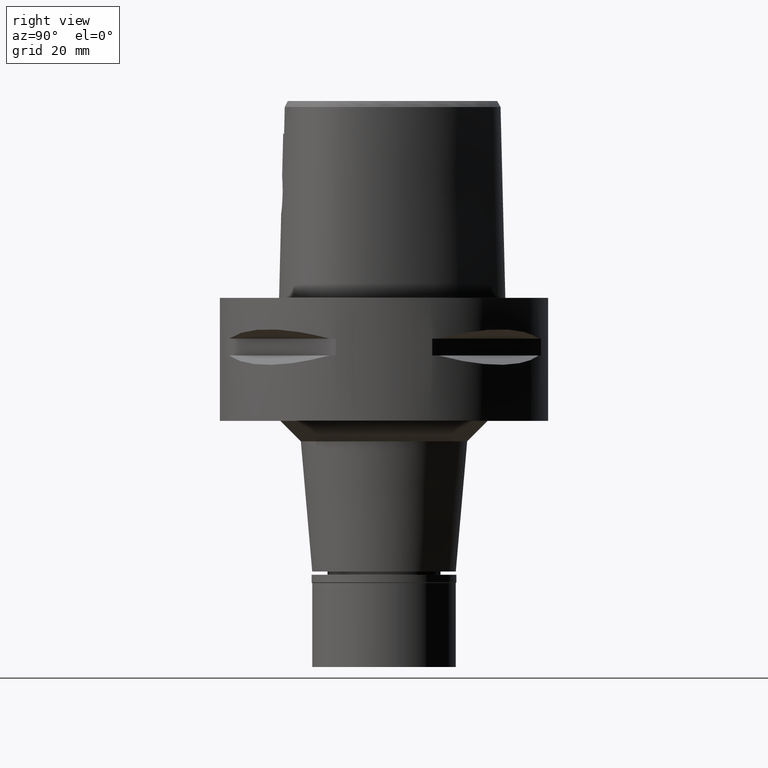
[diagram: clean part render]
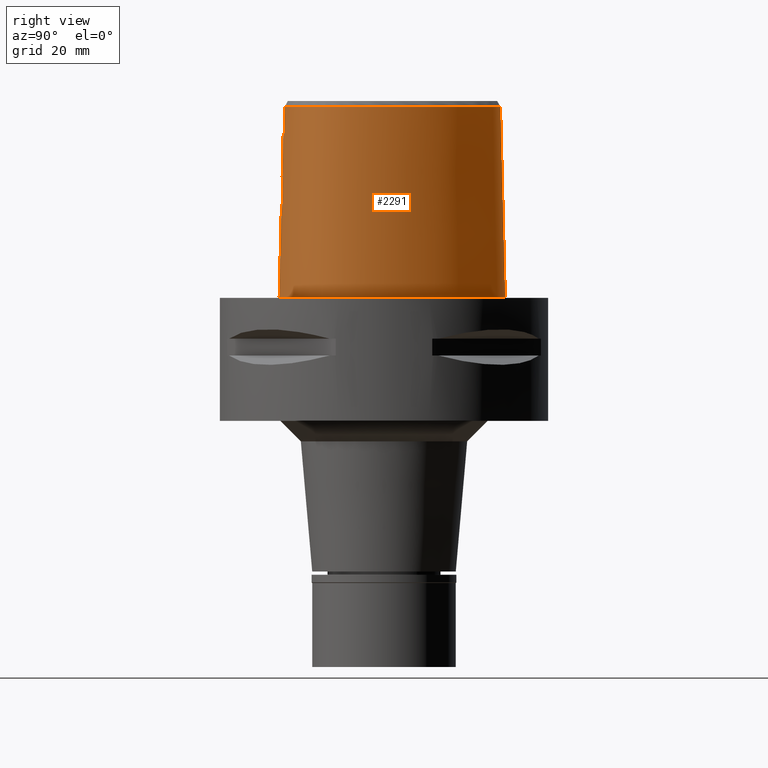
[diagram: same view with one face highlighted and labeled with its STEP entity id]
A machine part, right view. The second image highlights one B-rep face of the part: STEP entity #2291.
In plain terms, the highlighted face is a freeform B-spline surface patch.
Its self-contained STEP definition (entity closure, byte-faithful):
#25 = CARTESIAN_POINT ( 'NONE',  ( 26.79474625778999908, 1.906447387348000122, -0.9304144792094000138 ) ) ;
#49 = CARTESIAN_POINT ( 'NONE',  ( 24.60869384085000178, -14.20783601271000052, 47.45113843968000111 ) ) ;
#66 = CARTESIAN_POINT ( 'NONE',  ( 16.39076485917556880, -21.20751266143113156, 46.52069409116129606 ) ) ;
#82 = CARTESIAN_POINT ( 'NONE',  ( 24.95856549446000017, -14.40983450635000018, 31.32395413338000267 ) ) ;
#90 = CARTESIAN_POINT ( 'NONE',  ( 1.952635857166618916, -25.01389984458333871, 20.88358337727348513 ) ) ;
#102 = CARTESIAN_POINT ( 'NONE',  ( 24.14246365503000291, -15.65707285673999927, 31.32395413338000267 ) ) ;
#109 = CARTESIAN_POINT ( 'NONE',  ( 3.237005511786300804, -24.76067832112077838, 28.19756469887087746 ) ) ;
#120 = CARTESIAN_POINT ( 'NONE',  ( 17.77103258631999694, 19.53703864451000172, -0.9304144792094000138 ) ) ;
#131 = VECTOR ( 'NONE', #2222, 1000.000000000000000 ) ;
#132 = CARTESIAN_POINT ( 'NONE',  ( 3.937353243848181528, -24.84519667286564726, 22.71482954510166863 ) ) ;
#161 = CARTESIAN_POINT ( 'NONE',  ( 4.301663164393236372, -24.71910450366888767, 26.48607042045131621 ) ) ;
#175 = CARTESIAN_POINT ( 'NONE',  ( 0.7047156113667000232, 28.82388505244999877, 31.32395413338000267 ) ) ;
#189 = CARTESIAN_POINT ( 'NONE',  ( 4.547962263617892908, -24.73685171198798471, 24.85950514487634777 ) ) ;
#267 = CARTESIAN_POINT ( 'NONE',  ( 24.77458491143115182, -16.12173826396713139, 1.164902553596209450E-06 ) ) ;
#286 = CARTESIAN_POINT ( 'NONE',  ( -0.5689009026234999045, -25.59577917789999901, -0.9304144792094000138 ) ) ;
#300 = CARTESIAN_POINT ( 'NONE',  ( -1.216284564536000097E-11, 28.41206021534999593, 46.52071719450999154 ) ) ;
#317 = CARTESIAN_POINT ( 'NONE',  ( 23.44929528159000043, -17.78045351952999553, -0.9304144792094000138 ) ) ;
#342 = CARTESIAN_POINT ( 'NONE',  ( 27.68378750941413813, -8.751933590074074232, 1.164902553596209450E-06 ) ) ;
#345 = CARTESIAN_POINT ( 'NONE',  ( 10.99875819582631742, 24.38035098656107991, 46.52071268652616709 ) ) ;
#366 = CARTESIAN_POINT ( 'NONE',  ( 13.63304938780058073, 22.11238814014353338, 46.52071155953430548 ) ) ;
#412 = CARTESIAN_POINT ( 'NONE',  ( 3.154109046518000170, 29.36302093381000233, -0.9304144792094000138 ) ) ;
#423 = CARTESIAN_POINT ( 'NONE',  ( 26.53043812451214478, -3.252830914801275508, 46.52070254359986023 ) ) ;
#435 = CARTESIAN_POINT ( 'NONE',  ( 25.65830880169000139, -14.81383149363000129, -0.9304144792094000138 ) ) ;
#460 = CARTESIAN_POINT ( 'NONE',  ( 13.23332856296999971, 24.06149249907999987, -0.9304144792094000138 ) ) ;
#473 = CARTESIAN_POINT ( 'NONE',  ( 4.094115463334949467, -24.82458451489378248, 23.01236396660540962 ) ) ;
#487 = CARTESIAN_POINT ( 'NONE',  ( 9.316733117297999911, 26.81182150644999851, -0.9304144792094000138 ) ) ;
#494 = CARTESIAN_POINT ( 'NONE',  ( 3.252660951005723167, -24.76001264346002273, 28.18163816682579537 ) ) ;
#495 = CARTESIAN_POINT ( 'NONE',  ( -4.860375655667695126E-09, -24.74922215084490418, 33.03333351495538039 ) ) ;
#505 = CARTESIAN_POINT ( 'NONE',  ( 2.979937750277999786, 28.57037856184999924, 31.32395413338000267 ) ) ;
#513 = CARTESIAN_POINT ( 'NONE',  ( 4.337077477086218380, -24.71860659089787404, 26.37767366826318138 ) ) ;
#537 = CARTESIAN_POINT ( 'NONE',  ( 3.418326490945262197, -24.90370471633882588, 21.99337763265283030 ) ) ;
#556 = CARTESIAN_POINT ( 'NONE',  ( -0.5886350999143999951, 29.18561927726999983, 15.19676982709000157 ) ) ;
#567 = CARTESIAN_POINT ( 'NONE',  ( 3.205701519811287703, -24.92381821717546586, 21.77105828208824789 ) ) ;
#590 = CARTESIAN_POINT ( 'NONE',  ( 2.560989721137916675, -24.78761092133460409, 28.76100236096040774 ) ) ;
#614 = CARTESIAN_POINT ( 'NONE',  ( 1.986969619756904004, -24.80670454267319158, 29.09445024140497438 ) ) ;
#651 = B_SPLINE_CURVE_WITH_KNOTS ( 'NONE', 3,
 ( #3894, #3923, #1225, #727, #3517, #345, #366, #3542, #3134, #2004, #423, #3568, #4691, #4641, #4669, #1921, #1141, #1637, #3155, #4715, #1604, #3488, #66, #1163, #2749, #1188 ),
 .UNSPECIFIED., .F., .F.,
 ( 4, 2, 2, 2, 2, 2, 2, 2, 2, 2, 2, 2, 4 ),
 ( 0.0000000000000000000, 0.06250000000000000000, 0.1250000000000000000, 0.2499999999999999445, 0.4999999999999998890, 0.5624999999999998890, 0.6249999999999998890, 0.6874999999999998890, 0.7187499999999998890, 0.7499999999999998890, 0.8124999999999998890, 0.8749999999999998890, 1.000000000000000000 ),
 .UNSPECIFIED. ) ;
#654 = EDGE_CURVE ( 'NONE', #3581, #3614, #2713, .T. ) ;
#666 = CARTESIAN_POINT ( 'NONE',  ( -0.8391799841156000195, -24.78463148832999963, 31.32395413338000267 ) ) ;
#672 = CARTESIAN_POINT ( 'NONE',  ( 25.63812387332509601, -14.80217771979073582, 1.164902553596209450E-06 ) ) ;
#678 = LINE ( 'NONE', #300, #131 ) ;
#688 = EDGE_CURVE ( 'NONE', #2458, #1103, #1531, .T. ) ;
#689 = CARTESIAN_POINT ( 'NONE',  ( 4.602925666818999950, -24.35121855888000297, 40.00000005214999987 ) ) ;
#719 = CARTESIAN_POINT ( 'NONE',  ( 6.695047936512000142, -25.26858194627000032, -0.9304144792094000138 ) ) ;
#723 = CARTESIAN_POINT ( 'NONE',  ( 26.77222811451213147, 1.900468742514480835, 1.164902553596209450E-06 ) ) ;
#727 = CARTESIAN_POINT ( 'NONE',  ( 5.530043876419189708, 27.35846726635969262, 46.52071494050974110 ) ) ;
#796 = CARTESIAN_POINT ( 'NONE',  ( 17.45811262616999926, 19.27961880631999847, 15.19676982709000157 ) ) ;
#821 = CARTESIAN_POINT ( 'NONE',  ( 5.801139431869000163, 27.25218159349999780, 47.45113843968000111 ) ) ;
#842 = CARTESIAN_POINT ( 'NONE',  ( 22.35908247772999857, 12.90902243054000031, -0.9304144792094000138 ) ) ;
#853 = CARTESIAN_POINT ( 'NONE',  ( 3.458990831517686715, -24.75121472495268904, 27.95724070546422624 ) ) ;
#867 = CARTESIAN_POINT ( 'NONE',  ( 27.06950059909999950, -5.357664959751001099, 31.32395413338000267 ) ) ;
#880 = CARTESIAN_POINT ( 'NONE',  ( 3.861082105047250135, -24.85463631592573464, 22.58840412900303463 ) ) ;
#894 = CARTESIAN_POINT ( 'NONE',  ( 26.37046814545999851, -13.40391019821999841, -0.9304144792094000138 ) ) ;
#900 = CARTESIAN_POINT ( 'NONE',  ( 4.141553595727622827, -24.81790787904300188, 23.11546483665196661 ) ) ;
#923 = CARTESIAN_POINT ( 'NONE',  ( 3.196341748950109807, -24.92467674393278543, 21.76178677583787646 ) ) ;
#924 = CARTESIAN_POINT ( 'NONE',  ( 1.351075727145000046E-14, -24.83629963747999980, 29.55000000000000071 ) ) ;
#936 = CARTESIAN_POINT ( 'NONE',  ( -0.8299363417899000561, 28.36186523174999863, 47.45113843968000111 ) ) ;
#951 = CARTESIAN_POINT ( 'NONE',  ( 4.544345534604060433, -24.73984392723427206, 24.75509518056023239 ) ) ;
#965 = CARTESIAN_POINT ( 'NONE',  ( 4.472216720976999405, -24.20009030094000124, 46.52069014668999358 ) ) ;
#968 = CARTESIAN_POINT ( 'NONE',  ( 4.150872887605000030E-11, 29.57499999998999840, 1.066184177981999759E-13 ) ) ;
#972 = CARTESIAN_POINT ( 'NONE',  ( -1.821166691474000017E-11, -25.57499999999999929, 1.130207039067999908E-13 ) ) ;
#974 = ORIENTED_EDGE ( 'NONE', *, *, #688, .T. ) ;
#986 = CARTESIAN_POINT ( 'NONE',  ( 2.410767390552141620, -24.79324877274659755, 28.86155595109426031 ) ) ;
#1060 = CARTESIAN_POINT ( 'NONE',  ( 2.832428424601348915, -24.77719445135581466, 28.56165880794238987 ) ) ;
#1080 = CARTESIAN_POINT ( 'NONE',  ( 2.354169166465999830, -24.81494119886999883, 31.32395413338000267 ) ) ;
#1103 = VERTEX_POINT ( 'NONE', #968 ) ;
#1109 = CARTESIAN_POINT ( 'NONE',  ( 1.011135947205847208, -25.05051087875798643, 20.56129276502834813 ) ) ;
#1138 = CARTESIAN_POINT ( 'NONE',  ( 22.33885463235385771, 12.89734373537877943, 1.164902553596209450E-06 ) ) ;
#1141 = CARTESIAN_POINT ( 'NONE',  ( 24.33934953590530625, -14.68006085516641512, 46.52069803563262695 ) ) ;
#1163 = CARTESIAN_POINT ( 'NONE',  ( 11.70978320535149386, -23.05272019184888777, 46.52069240067358180 ) ) ;
#1177 = CARTESIAN_POINT ( 'NONE',  ( -0.5595330821616999462, -24.78951210741000111, 31.32395413338000267 ) ) ;
#1179 = VERTEX_POINT ( 'NONE', #2081 ) ;
#1188 = CARTESIAN_POINT ( 'NONE',  ( 4.472216720976999405, -24.20009030094000124, 46.52069014668999358 ) ) ;
#1211 = CARTESIAN_POINT ( 'NONE',  ( 27.16099298880000035, -1.823107492030999977, 15.19676982709000157 ) ) ;
#1225 = CARTESIAN_POINT ( 'NONE',  ( 2.760678900605150421, 28.19254769429840479, 46.52071606750156008 ) ) ;
#1237 = CARTESIAN_POINT ( 'NONE',  ( 27.70696775909000209, -8.754869100840998897, -0.9304144792094000138 ) ) ;
#1246 = CARTESIAN_POINT ( 'NONE',  ( 3.996558060057625372, -24.72854169055286633, 27.19514510551928765 ) ) ;
#1259 = CARTESIAN_POINT ( 'NONE',  ( 27.47379251507999953, -5.347524336909000198, 15.19676982709000157 ) ) ;
#1268 = CARTESIAN_POINT ( 'NONE',  ( 1.672780685871462891, -25.02682213713908155, 20.76857498625504306 ) ) ;
#1269 = CARTESIAN_POINT ( 'NONE',  ( -1.451045074373000022E-08, -24.57504746727000011, 40.00000005214000254 ) ) ;
#1279 = CARTESIAN_POINT ( 'NONE',  ( 12.96695409944000055, 23.75598709828999944, 15.19676982709000157 ) ) ;
#1293 = CARTESIAN_POINT ( 'NONE',  ( 3.100243586364359594, -24.93331626314397553, 21.66917441973970782 ) ) ;
#1307 = CARTESIAN_POINT ( 'NONE',  ( 27.87808443105999601, -5.337383714066000095, -0.9304144792094000138 ) ) ;
#1317 = CARTESIAN_POINT ( 'NONE',  ( 3.606429171763832375, -24.88406245827872709, 22.22480142265834502 ) ) ;
#1343 = CARTESIAN_POINT ( 'NONE',  ( 4.172398775490914424, -24.81348664747167732, 23.18477895933814636 ) ) ;
#1360 = ORIENTED_EDGE ( 'NONE', *, *, #4803, .T. ) ;
#1414 = CARTESIAN_POINT ( 'NONE',  ( 0.6828676566618000487, 28.41974806906999973, 47.45113843968000111 ) ) ;
#1426 = CARTESIAN_POINT ( 'NONE',  ( 2.676740183930831130, -25.57499997088002885, 1.164902553596209662E-06 ) ) ;
#1447 = CARTESIAN_POINT ( 'NONE',  ( 4.560197061652469408, -24.30012317751191020, 42.17356341699667155 ) ) ;
#1473 = CARTESIAN_POINT ( 'NONE',  ( 17.98126123955999844, -20.40884543509999816, 47.45113843968000111 ) ) ;
#1478 = CARTESIAN_POINT ( 'NONE',  ( 4.150872887605000030E-11, 29.57499999998999840, 1.066184177981999759E-13 ) ) ;
#1499 = CARTESIAN_POINT ( 'NONE',  ( 4.472216720976999405, -24.20009030094000124, 46.52069014668999358 ) ) ;
#1515 = CARTESIAN_POINT ( 'NONE',  ( 11.43012068967999895, -22.98864608917000396, 47.45113843968000111 ) ) ;
#1523 = CARTESIAN_POINT ( 'NONE',  ( 1.609901483201636507, -25.02958960435421432, 20.74402583925053989 ) ) ;
#1531 = B_SPLINE_CURVE_WITH_KNOTS ( 'NONE', 3,
 ( #2286, #1426, #4563, #3436, #3868, #4664, #1819, #1898, #267, #672, #4254, #3464, #342, #5030, #1918, #723, #2314, #1138, #3484, #3034, #5050, #3384, #2723, #5008, #1478 ),
 .UNSPECIFIED., .F., .F.,
 ( 4, 1, 1, 1, 1, 1, 1, 1, 1, 1, 1, 1, 1, 1, 1, 1, 1, 1, 1, 1, 1, 1, 4 ),
 ( 0.0000000000000000000, 0.08333333333347001104, 0.1250000000001000033, 0.1666666666668000230, 0.2083333333334000115, 0.2500000000000000000, 0.2916666666666999919, 0.3125000000000000000, 0.3333333333333000081, 0.3541666666666999919, 0.3750000000000000000, 0.4166666666666000163, 0.4583333333332000326, 0.4999999999998999689, 0.5416666666666000163, 0.5833333333331000015, 0.6666666666664999852, 0.7499999999997000177, 0.8333333333329999704, 0.8749999999995999866, 0.9166666666663000340, 0.9583333333329000503, 1.000000000000000000 ),
 .UNSPECIFIED. ) ;
#1570 = CARTESIAN_POINT ( 'NONE',  ( -0.8532294277654000059, -25.59082453098000087, -0.9304144792094000138 ) ) ;
#1587 = CARTESIAN_POINT ( 'NONE',  ( 1.351075727145000046E-14, -24.83629963747999980, 29.55000000000000071 ) ) ;
#1592 = CARTESIAN_POINT ( 'NONE',  ( 0.7265635660714999666, 29.22802203583999869, 15.19676982709000157 ) ) ;
#1604 = CARTESIAN_POINT ( 'NONE',  ( 20.45409312013851988, -18.82869992193702657, 46.52069578164903163 ) ) ;
#1623 = CARTESIAN_POINT ( 'NONE',  ( 25.63065467239000128, -13.07945040985999974, 31.32395413338000267 ) ) ;
#1637 = CARTESIAN_POINT ( 'NONE',  ( 23.53784508589650315, -15.81022840325133139, 46.52069747213671747 ) ) ;
#1649 = CARTESIAN_POINT ( 'NONE',  ( 27.12297207986999936, -11.41745865541999905, -0.9304144792094000138 ) ) ;
#1657 = CARTESIAN_POINT ( 'NONE',  ( 2.192364263587619266, -25.00047163864963906, 21.00192190659221225 ) ) ;
#1671 = CARTESIAN_POINT ( 'NONE',  ( 26.34453533276999693, -11.19579297592999900, 31.32395413338000267 ) ) ;
#1678 = CARTESIAN_POINT ( 'NONE',  ( 3.227783996387109333, -24.76107025147647533, 28.20686722737168495 ) ) ;
#1694 = CARTESIAN_POINT ( 'NONE',  ( 24.79336081454000151, -16.13554022454999881, -0.9304144792094000138 ) ) ;
#1708 = CARTESIAN_POINT ( 'NONE',  ( 3.560464869665294518, -24.88898092548869556, 22.16607190872599631 ) ) ;
#1728 = EDGE_CURVE ( 'NONE', #1179, #4806, #3672, .T. ) ;
#1736 = CARTESIAN_POINT ( 'NONE',  ( 4.230858595537659639, -24.72073100376796972, 26.67421065539049607 ) ) ;
#1763 = CARTESIAN_POINT ( 'NONE',  ( 1.883305297007180190, -24.80958828430719976, 29.14211520707399927 ) ) ;
#1817 = CARTESIAN_POINT ( 'NONE',  ( 1.779627886571083062, -24.81238721778816725, 29.18772178098353010 ) ) ;
#1819 = CARTESIAN_POINT ( 'NONE',  ( 21.42129057594749497, -19.59889646108080896, 1.164902553596209450E-06 ) ) ;
#1837 = CARTESIAN_POINT ( 'NONE',  ( 1.541632268877586087, -24.57506718866735795, 40.00000010051915211 ) ) ;
#1842 = CARTESIAN_POINT ( 'NONE',  ( 0.5545157691314083204, -24.83629963747999270, 29.54999999999999716 ) ) ;
#1862 = CARTESIAN_POINT ( 'NONE',  ( 18.56135208398999836, -21.47443746695999778, -0.9304144792094000138 ) ) ;
#1889 = VERTEX_POINT ( 'NONE', #4049 ) ;
#1892 = CARTESIAN_POINT ( 'NONE',  ( 2.334473172519999640, -24.41160996892999790, 47.45113843968000111 ) ) ;
#1898 = CARTESIAN_POINT ( 'NONE',  ( 23.43253026649154336, -17.76420408122146810, 1.164902553596209450E-06 ) ) ;
#1918 = CARTESIAN_POINT ( 'NONE',  ( 27.53737508974357695, -1.765625004407048726, 1.164902553596209450E-06 ) ) ;
#1921 = CARTESIAN_POINT ( 'NONE',  ( 24.69258566271574651, -14.08975149522464321, 46.52069831738057815 ) ) ;
#1936 = CARTESIAN_POINT ( 'NONE',  ( 2.393561154357000120, -25.62160365876000157, -0.9304144792094000138 ) ) ;
#1992 = CARTESIAN_POINT ( 'NONE',  ( 25.26074793585999956, -12.91722051568000040, 47.45113843968000111 ) ) ;
#2004 = CARTESIAN_POINT ( 'NONE',  ( 26.30769162470500433, -1.593520748820492328, 46.52070310709576262 ) ) ;
#2015 = CARTESIAN_POINT ( 'NONE',  ( 21.65785138263999698, 12.50416150518999814, 31.32395413338000267 ) ) ;
#2044 = CARTESIAN_POINT ( 'NONE',  ( 9.105791465425001618, 26.46675914467000013, 15.19676982709000157 ) ) ;
#2056 = CARTESIAN_POINT ( 'NONE',  ( 4.208386412724203218, -24.72133790640166850, 26.72975093107580946 ) ) ;
#2070 = CARTESIAN_POINT ( 'NONE',  ( 12.43420517237000134, 23.14497629671000212, 47.45113843968000111 ) ) ;
#2078 = CARTESIAN_POINT ( 'NONE',  ( 3.317903692992101750, -24.91347842919925171, 21.88291014845671967 ) ) ;
#2081 = CARTESIAN_POINT ( 'NONE',  ( -1.451045074373000022E-08, -24.57504746727000011, 40.00000005214000254 ) ) ;
#2090 = CARTESIAN_POINT ( 'NONE',  ( 26.01411826818999629, 1.699187959281000193, 31.32395413338000267 ) ) ;
#2098 = CARTESIAN_POINT ( 'NONE',  ( 4.212885333431600543, -24.72121330192673128, 26.71877560767999427 ) ) ;
#2130 = CARTESIAN_POINT ( 'NONE',  ( 4.523121810470201787, -24.72136632330987638, 25.57645994462144046 ) ) ;
#2157 = CARTESIAN_POINT ( 'NONE',  ( 4.186622009783886433, -24.81141158316093254, 23.21777758281611170 ) ) ;
#2177 = ORIENTED_EDGE ( 'NONE', *, *, #654, .F. ) ;
#2222 = DIRECTION ( 'NONE',  ( 1.153353075786030079E-12, 0.02499051293969065113, -0.9996876883622259902 ) ) ;
#2229 = CARTESIAN_POINT ( 'NONE',  ( -0.5711750994723999719, 28.78275050323999906, 31.32395413338000267 ) ) ;
#2245 = CARTESIAN_POINT ( 'NONE',  ( 4.602925666818999950, -24.35121855888000297, 40.00000005214999987 ) ) ;
#2256 = CARTESIAN_POINT ( 'NONE',  ( 11.74634101484999960, -24.15815461099999695, -0.9304144792094000138 ) ) ;
#2280 = CARTESIAN_POINT ( 'NONE',  ( 15.30623779601999956, -22.98697010193000168, -0.9304144792094000138 ) ) ;
#2286 = CARTESIAN_POINT ( 'NONE',  ( -1.821166691474000017E-11, -25.57499999999999929, 1.130207039067999908E-13 ) ) ;
#2291 = ADVANCED_FACE ( 'NONE', ( #3480 ), #3452, .T. ) ;
#2310 = CARTESIAN_POINT ( 'NONE',  ( 6.528779356812999701, -24.06669574025000102, 47.45113843968000111 ) ) ;
#2314 = CARTESIAN_POINT ( 'NONE',  ( 25.20914247280188292, 6.827421863996160134, 1.164902553596209450E-06 ) ) ;
#2386 = CARTESIAN_POINT ( 'NONE',  ( 8.683908161679001481, 25.77663442112000425, 47.45113843968000111 ) ) ;
#2407 = CARTESIAN_POINT ( 'NONE',  ( 8.894849813551999773, 26.12169678289999908, 31.32395413338000267 ) ) ;
#2418 = CARTESIAN_POINT ( 'NONE',  ( -2.263615543289000344E-12, -25.06378435148999984, 20.44999999999999929 ) ) ;
#2429 = CARTESIAN_POINT ( 'NONE',  ( 17.14519266602999892, 19.02219896813999966, 31.32395413338000267 ) ) ;
#2439 = CARTESIAN_POINT ( 'NONE',  ( 3.739368471919781722, -24.86915408846631337, 22.40675187304728411 ) ) ;
#2457 = CARTESIAN_POINT ( 'NONE',  ( 27.56041892246000202, -1.762105663754000018, -0.9304144792094000138 ) ) ;
#2458 = VERTEX_POINT ( 'NONE', #972 ) ;
#2469 = CARTESIAN_POINT ( 'NONE',  ( 3.329382130118904826, -24.75674668230310971, 28.10179055163413508 ) ) ;
#2479 = CARTESIAN_POINT ( 'NONE',  ( 24.48145224533000075, 6.531540503458000302, 31.32395413338000267 ) ) ;
#2485 = CARTESIAN_POINT ( 'NONE',  ( 4.402195190950401127, -24.71810392633526732, 26.16020714300089267 ) ) ;
#2508 = CARTESIAN_POINT ( 'NONE',  ( 4.550159243768821860, -24.72595648767389775, 25.28426205013431272 ) ) ;
#2541 = CARTESIAN_POINT ( 'NONE',  ( 4.115420520910591407, -24.72394829500681723, 26.95489229166221179 ) ) ;
#2566 = EDGE_LOOP ( 'NONE', ( #5074, #3324, #2177, #4396, #2587, #4660, #1360, #974 ) ) ;
#2587 = ORIENTED_EDGE ( 'NONE', *, *, #1728, .T. ) ;
#2589 = CARTESIAN_POINT ( 'NONE',  ( 2.087632527490743239, -24.80370565429766927, 29.04349576581661907 ) ) ;
#2618 = CARTESIAN_POINT ( 'NONE',  ( 2.284825071826325438, -24.79755434855795571, 28.93755567620459601 ) ) ;
#2621 = VECTOR ( 'NONE', #3576, 1000.000000000000000 ) ;
#2665 = CARTESIAN_POINT ( 'NONE',  ( 20.70054131085000293, -18.64994422775999894, 47.45113843968000111 ) ) ;
#2669 = CARTESIAN_POINT ( 'NONE',  ( 1.351075727145000046E-14, -24.83629963747999980, 29.55000000000000071 ) ) ;
#2687 = CARTESIAN_POINT ( 'NONE',  ( -0.5642169923926000363, -25.19264564266000050, 15.19676982709000157 ) ) ;
#2697 = CARTESIAN_POINT ( 'NONE',  ( 1.374979210368837190, -25.03889659011747426, 20.66206490747626745 ) ) ;
#2713 = B_SPLINE_CURVE_WITH_KNOTS ( 'NONE', 3,
 ( #3060, #1447, #3079, #1499 ),
 .UNSPECIFIED., .F., .F.,
 ( 4, 4 ),
 ( 0.0000000000000000000, 1.000000000000000000 ),
 .UNSPECIFIED. ) ;
#2723 = CARTESIAN_POINT ( 'NONE',  ( 3.149084868220686229, 29.34015622137630075, 1.164902553596209450E-06 ) ) ;
#2727 = CARTESIAN_POINT ( 'NONE',  ( 1.157035249423343126, -25.04636291852922625, 20.59695966232724373 ) ) ;
#2749 = CARTESIAN_POINT ( 'NONE',  ( 8.153873202538834519, -23.84765792154105668, 46.52069127368180546 ) ) ;
#2796 = CARTESIAN_POINT ( 'NONE',  ( 21.30723583510000196, 12.30173104250999927, 47.45113843968000111 ) ) ;
#2823 = CARTESIAN_POINT ( 'NONE',  ( 26.90338677644000143, -8.653104854998998618, 31.32395413338000267 ) ) ;
#2833 = CARTESIAN_POINT ( 'NONE',  ( 3.756465253610788757, -24.73852494831077564, 27.57169756947411088 ) ) ;
#2843 = CARTESIAN_POINT ( 'NONE',  ( 23.81701507528000050, -15.41783917282999994, 47.45113843968000111 ) ) ;
#2852 = CARTESIAN_POINT ( 'NONE',  ( 4.496850936021979273, -24.75618253903773791, 24.29074513878774511 ) ) ;
#2870 = CARTESIAN_POINT ( 'NONE',  ( 6.114741924313999100, 27.99897533469000166, 15.19676982709000157 ) ) ;
#2880 = CARTESIAN_POINT ( 'NONE',  ( 3.156365463052565268, -24.92830912253882047, 21.72269515073478630 ) ) ;
#2902 = CARTESIAN_POINT ( 'NONE',  ( 1.717599865389493274, -25.02478947459729852, 20.78664336873125862 ) ) ;
#2927 = CARTESIAN_POINT ( 'NONE',  ( 2.955264688608119528, -24.94567926532404556, 21.53931554468373832 ) ) ;
#3034 = CARTESIAN_POINT ( 'NONE',  ( 13.21796078621782300, 24.04386716542862601, 1.164902553596209450E-06 ) ) ;
#3055 = CARTESIAN_POINT ( 'NONE',  ( 21.19046239196000414, -19.29498367016000060, 15.19676982709000157 ) ) ;
#3060 = CARTESIAN_POINT ( 'NONE',  ( 4.602925666818999950, -24.35121855888000297, 40.00000005214999987 ) ) ;
#3079 = CARTESIAN_POINT ( 'NONE',  ( 4.516620281278921567, -24.24973700794193476, 44.34712678184333612 ) ) ;
#3096 = CARTESIAN_POINT ( 'NONE',  ( 15.15935282126000061, -22.61055604348999992, 15.19676982709000157 ) ) ;
#3121 = VERTEX_POINT ( 'NONE', #3697 ) ;
#3134 = CARTESIAN_POINT ( 'NONE',  ( 24.48700992949867583, 6.834036305490588603, 46.52070592457529585 ) ) ;
#3146 = CARTESIAN_POINT ( 'NONE',  ( 6.639625076611999965, -24.86795321093000055, 15.19676982709000157 ) ) ;
#3155 = CARTESIAN_POINT ( 'NONE',  ( 23.08984995680127028, -16.35075897049662430, 46.52069719038876627 ) ) ;
#3168 = CARTESIAN_POINT ( 'NONE',  ( 26.36214112147999700, -1.945111148587000072, 47.45113843968000111 ) ) ;
#3203 = CARTESIAN_POINT ( 'NONE',  ( 24.46791223479000266, -15.89630654063999771, 15.19676982709000157 ) ) ;
#3214 = CARTESIAN_POINT ( 'NONE',  ( 1.704163054240291686, -25.02540437729528122, 20.78117410888069116 ) ) ;
#3225 = CARTESIAN_POINT ( 'NONE',  ( 12.70057963589999872, 23.45048169750000255, 31.32395413338000267 ) ) ;
#3233 = CARTESIAN_POINT ( 'NONE',  ( 3.512978482355694432, -24.74890643940161539, 27.89278862330787234 ) ) ;
#3244 = CARTESIAN_POINT ( 'NONE',  ( 25.95531695922000281, -11.08496013619000031, 47.45113843968000111 ) ) ;
#3252 = CARTESIAN_POINT ( 'NONE',  ( 3.115833847005022861, -24.76582665838805397, 28.31908668410563834 ) ) ;
#3268 = CARTESIAN_POINT ( 'NONE',  ( 24.10679983705999874, 6.379205539892000232, 47.45113843968000111 ) ) ;
#3280 = CARTESIAN_POINT ( 'NONE',  ( 4.412773899541609701, -24.77516587915418000, 23.85162301166200649 ) ) ;
#3303 = CARTESIAN_POINT ( 'NONE',  ( 4.220110851308597866, -24.72101730040711587, 26.70095761995009553 ) ) ;
#3316 = CARTESIAN_POINT ( 'NONE',  ( -0.8826521035912999746, 29.16640542126999947, 15.19676982709000157 ) ) ;
#3324 = ORIENTED_EDGE ( 'NONE', *, *, #4523, .T. ) ;
#3361 = CARTESIAN_POINT ( 'NONE',  ( 1.153626000806829088, -24.82864766317860372, 29.44729853102903050 ) ) ;
#3383 = CARTESIAN_POINT ( 'NONE',  ( 1.813541865602207981, -24.81148519056509372, 29.17313109452808106 ) ) ;
#3384 = CARTESIAN_POINT ( 'NONE',  ( 6.262496933466318971, 28.35083005115927435, 1.164902553596209450E-06 ) ) ;
#3428 = CARTESIAN_POINT ( 'NONE',  ( 18.36798846918000194, -21.11924012300999820, 15.19676982709000157 ) ) ;
#3436 = CARTESIAN_POINT ( 'NONE',  ( 11.74025984713718529, -24.13566403434472463, 1.164902553596209450E-06 ) ) ;
#3437 = EDGE_CURVE ( 'NONE', #3581, #1179, #5033, .T. ) ;
#3452 = B_SPLINE_SURFACE_WITH_KNOTS ( 'NONE', 3, 3, ( 
 ( #1570, #5000, #666, #3533 ),
 ( #286, #2687, #1177, #3911 ),
 ( #1936, #4246, #1080, #1892 ),
 ( #719, #3146, #4704, #2310 ),
 ( #2256, #3863, #3812, #1515 ),
 ( #2280, #3096, #5073, #5046 ),
 ( #1862, #3428, #4659, #1473 ),
 ( #4221, #3055, #4610, #2665 ),
 ( #317, #3459, #3986, #4020 ),
 ( #1694, #3203, #102, #2843 ),
 ( #435, #3555, #82, #49 ),
 ( #894, #3942, #1623, #1992 ),
 ( #1649, #4759, #1671, #3244 ),
 ( #1237, #4783, #2823, #4392 ),
 ( #1307, #1259, #867, #4805 ),
 ( #2457, #1211, #3964, #3168 ),
 ( #25, #4319, #2090, #3579 ),
 ( #4372, #4832, #2479, #3268 ),
 ( #842, #4728, #2015, #2796 ),
 ( #120, #796, #2429, #4042 ),
 ( #460, #1279, #3225, #2070 ),
 ( #487, #2044, #2407, #2386 ),
 ( #3607, #2870, #4351, #821 ),
 ( #412, #3630, #505, #3650 ),
 ( #4425, #1592, #175, #1414 ),
 ( #4916, #556, #2229, #3755 ),
 ( #4881, #3316, #4551, #936 ) ),
 .UNSPECIFIED., .F., .F., .F.,
 ( 4, 1, 1, 1, 1, 1, 1, 1, 1, 1, 1, 1, 1, 1, 1, 1, 1, 1, 1, 1, 1, 1, 1, 1, 4 ),
 ( 4, 4 ),
 ( -0.008851417483077999790, 0.0000000000000000000, 0.08333333333347001104, 0.1250000000001000033, 0.1666666666668000230, 0.2083333333334000115, 0.2500000000000000000, 0.2916666666666999919, 0.3125000000000000000, 0.3333333333333000081, 0.3541666666666999919, 0.3750000000000000000, 0.4166666666666000163, 0.4583333333332000326, 0.4999999999998999689, 0.5416666666666000163, 0.5833333333331000015, 0.6666666666664999852, 0.7499999999997000177, 0.8333333333329999704, 0.8749999999995999866, 0.9166666666663000340, 0.9583333333329000503, 1.000000000000000000, 1.012009199036000062 ),
 ( 5.172150933236000430E-09, 0.9999997362204000595 ),
 .UNSPECIFIED. ) ;
#3459 = CARTESIAN_POINT ( 'NONE',  ( 23.15870205037999696, -17.49879694148999931, 15.19676982709000157 ) ) ;
#3464 = CARTESIAN_POINT ( 'NONE',  ( 27.10051714558954217, -11.41106444512159257, 1.164902553596209450E-06 ) ) ;
#3480 = FACE_OUTER_BOUND ( 'NONE', #2566, .T. ) ;
#3484 = CARTESIAN_POINT ( 'NONE',  ( 17.75297948909306456, 19.52218748140503735, 1.164902553596209450E-06 ) ) ;
#3488 = CARTESIAN_POINT ( 'NONE',  ( 17.84219066873946602, -20.48406917474573774, 46.52069465465723397 ) ) ;
#3517 = CARTESIAN_POINT ( 'NONE',  ( 6.913370730854524027, 26.74336904842466112, 46.52071437701383871 ) ) ;
#3533 = CARTESIAN_POINT ( 'NONE',  ( -0.8321552622907000263, -24.38153496701000478, 47.45113843968000111 ) ) ;
#3542 = CARTESIAN_POINT ( 'NONE',  ( 20.76159157988013959, 13.99289103072247720, 46.52070817855891960 ) ) ;
#3555 = CARTESIAN_POINT ( 'NONE',  ( 25.30843714807999945, -14.61183299998999985, 15.19676982709000157 ) ) ;
#3568 = CARTESIAN_POINT ( 'NONE',  ( 26.66096789088553365, -6.450661550928797006, 46.52070141660804836 ) ) ;
#3576 = DIRECTION ( 'NONE',  ( -7.796122547382743555E-13, -0.02499051295403921166, -0.9996876883618673881 ) ) ;
#3579 = CARTESIAN_POINT ( 'NONE',  ( 25.62380427337999933, 1.595558245247000073, 47.45113843968000111 ) ) ;
#3581 = VERTEX_POINT ( 'NONE', #2245 ) ;
#3590 = CARTESIAN_POINT ( 'NONE',  ( 0.5741109003796893706, -25.06046598330698671, 20.47661985235026094 ) ) ;
#3607 = CARTESIAN_POINT ( 'NONE',  ( 6.271543170536000744, 28.37237220527999781, -0.9304144792094000138 ) ) ;
#3614 = VERTEX_POINT ( 'NONE', #965 ) ;
#3616 = CARTESIAN_POINT ( 'NONE',  ( 3.666127388008826760, -24.74236822830322424, 27.69981209002141753 ) ) ;
#3630 = CARTESIAN_POINT ( 'NONE',  ( 3.067023398398000200, 28.96669974783000256, 15.19676982709000157 ) ) ;
#3638 = CARTESIAN_POINT ( 'NONE',  ( 2.568983978598827989, -24.97528315391447862, 21.24168007029557614 ) ) ;
#3650 = CARTESIAN_POINT ( 'NONE',  ( 2.892852102157999816, 28.17405737585999859, 47.45113843968000111 ) ) ;
#3657 = CARTESIAN_POINT ( 'NONE',  ( 2.890648186359105143, -24.95092863274544470, 21.48525694161333988 ) ) ;
#3672 = B_SPLINE_CURVE_WITH_KNOTS ( 'NONE', 3,
 ( #1269, #4003, #495, #924 ),
 .UNSPECIFIED., .F., .F.,
 ( 4, 4 ),
 ( 0.0000000000000000000, 1.000000000000000000 ),
 .UNSPECIFIED. ) ;
#3688 = CARTESIAN_POINT ( 'NONE',  ( 4.437987378315740195, -24.71842636459945552, 26.01433587875823505 ) ) ;
#3697 = CARTESIAN_POINT ( 'NONE',  ( -1.216284564536000097E-11, 28.41206021534999593, 46.52071719450999154 ) ) ;
#3704 = EDGE_CURVE ( 'NONE', #3121, #1103, #678, .T. ) ;
#3712 = CARTESIAN_POINT ( 'NONE',  ( 4.549574022937064477, -24.73494683104343039, 24.92875559372933481 ) ) ;
#3755 = CARTESIAN_POINT ( 'NONE',  ( -0.5537150990303000286, 28.37988172920000096, 47.45113843968000111 ) ) ;
#3812 = CARTESIAN_POINT ( 'NONE',  ( 11.53552746473999946, -23.37848226312000222, 31.32395413338000267 ) ) ;
#3844 = CARTESIAN_POINT ( 'NONE',  ( 2.653628212344381954, -24.78409939537363726, 28.69623435022996816 ) ) ;
#3863 = CARTESIAN_POINT ( 'NONE',  ( 11.64093423979999997, -23.76831843705999958, 15.19676982709000157 ) ) ;
#3868 = CARTESIAN_POINT ( 'NONE',  ( 15.29776365225093038, -22.96525387906154592, 1.164902553596209450E-06 ) ) ;
#3894 = CARTESIAN_POINT ( 'NONE',  ( -1.216284564536000097E-11, 28.41206021534999593, 46.52071719450999154 ) ) ;
#3911 = CARTESIAN_POINT ( 'NONE',  ( -0.5548491719308999981, -24.38637857216000171, 47.45113843968000111 ) ) ;
#3923 = CARTESIAN_POINT ( 'NONE',  ( 1.375467128704440212, 28.41206022877988246, 46.52071663099746246 ) ) ;
#3942 = CARTESIAN_POINT ( 'NONE',  ( 26.00056140893000034, -13.24168030403999907, 15.19676982709000157 ) ) ;
#3964 = CARTESIAN_POINT ( 'NONE',  ( 26.76156705513999867, -1.884109320309000024, 31.32395413338000267 ) ) ;
#3975 = CARTESIAN_POINT ( 'NONE',  ( 0.2837429639712215623, -25.06378435148999273, 20.45000000000000284 ) ) ;
#3986 = CARTESIAN_POINT ( 'NONE',  ( 22.86810881918000149, -17.21714036345000309, 31.32395413338000267 ) ) ;
#3998 = CARTESIAN_POINT ( 'NONE',  ( 4.043275511959486757, -24.83139551622599939, 22.91194186429490287 ) ) ;
#4003 = CARTESIAN_POINT ( 'NONE',  ( -4.851582042199988892E-09, -24.66214466420280971, 36.51666702991063573 ) ) ;
#4020 = CARTESIAN_POINT ( 'NONE',  ( 22.57751558796999802, -16.93548378540999977, 47.45113843968000111 ) ) ;
#4028 = CARTESIAN_POINT ( 'NONE',  ( 3.275992991610297889, -24.75902016830567831, 28.15772619068259885 ) ) ;
#4042 = CARTESIAN_POINT ( 'NONE',  ( 16.83227270588000124, 18.76477912996000086, 47.45113843968000111 ) ) ;
#4048 = CARTESIAN_POINT ( 'NONE',  ( 4.255303340876160689, -24.72011691775877296, 26.61166571686794313 ) ) ;
#4049 = CARTESIAN_POINT ( 'NONE',  ( -2.263615543289000344E-12, -25.06378435148999984, 20.44999999999999929 ) ) ;
#4069 = CARTESIAN_POINT ( 'NONE',  ( 1.732112786592006737, -25.02412118468007662, 20.79259001707724153 ) ) ;
#4103 = CARTESIAN_POINT ( 'NONE',  ( 2.697261088284074404, -24.96604596303032508, 21.33198344650105227 ) ) ;
#4221 = CARTESIAN_POINT ( 'NONE',  ( 21.43542293252000164, -19.61750339137000054, -0.9304144792094000138 ) ) ;
#4246 = CARTESIAN_POINT ( 'NONE',  ( 2.373865160410999930, -25.21827242881999709, 15.19676982709000157 ) ) ;
#4254 = CARTESIAN_POINT ( 'NONE',  ( 26.34912734547945945, -13.39455076952985202, 1.164902553596209450E-06 ) ) ;
#4313 = LINE ( 'NONE', #4369, #2621 ) ;
#4319 = CARTESIAN_POINT ( 'NONE',  ( 26.40443226298999946, 1.802817673314000002, 15.19676982709000157 ) ) ;
#4351 = CARTESIAN_POINT ( 'NONE',  ( 5.957940678091000031, 27.62557846409000106, 31.32395413338000267 ) ) ;
#4369 = CARTESIAN_POINT ( 'NONE',  ( -2.263615543289000344E-12, -25.06378435148999984, 20.44999999999999929 ) ) ;
#4372 = CARTESIAN_POINT ( 'NONE',  ( 25.23075706188000211, 6.836210430589999554, -0.9304144792094000138 ) ) ;
#4382 = CARTESIAN_POINT ( 'NONE',  ( 4.325577296999667531, -24.79069917426005532, 23.55238152010286257 ) ) ;
#4392 = CARTESIAN_POINT ( 'NONE',  ( 26.50159628512000154, -8.602222732076999279, 47.45113843968000111 ) ) ;
#4394 = B_SPLINE_CURVE_WITH_KNOTS ( 'NONE', 3,
 ( #2418, #3975, #3590, #1109, #2727, #2697, #5053, #1523, #1268, #3214, #2902, #4431, #4069, #90, #1657, #3638, #4103, #3657, #2927, #4481, #1293, #2880, #4454, #923, #567, #2078, #537, #1708, #1317, #4406, #2439, #880, #132, #3998, #473, #900, #1343, #2157, #4382, #3280, #2852, #4842, #4769, #951, #189, #3712, #4865, #2508, #2130, #3688, #2485, #513, #161, #4048, #1736, #3303, #2098, #2056, #2541, #1246, #2833, #3616, #3233, #853, #4791, #2469, #4028, #494, #109, #1678, #3252, #4815, #1060, #4593, #3844, #4977, #590, #986, #2618, #2589, #614, #1763, #3383, #1817, #3361, #1842, #2669 ),
 .UNSPECIFIED., .F., .F.,
 ( 4, 2, 2, 1, 1, 1, 1, 2, 2, 2, 2, 2, 1, 1, 2, 2, 2, 2, 2, 2, 1, 2, 2, 2, 2, 1, 2, 2, 2, 2, 1, 1, 1, 2, 2, 2, 2, 2, 1, 1, 2, 2, 2, 1, 2, 2, 2, 1, 2, 2, 4 ),
 ( 0.0000000000000000000, 0.06249999999999460154, 0.09374999999999189537, 0.1093749999999904104, 0.1171874999999898415, 0.1210937499999896610, 0.1230468749999894112, 0.1240234374999892725, 0.1249999999999891337, 0.1874999999999811540, 0.2187499999999771017, 0.2343749999999751310, 0.2421874999999739375, 0.2460937499999733824, 0.2480468749999730771, 0.2499999999999727718, 0.2812499999999667488, 0.2968749999999637512, 0.3124999999999607536, 0.3437499999999547029, 0.3593749999999520384, 0.3671874999999503730, 0.3749999999999487077, 0.4374999999999341083, 0.4687499999999271694, 0.4843749999999240607, 0.4921874999999225064, 0.4999999999999209521, 0.5624999999999085176, 0.5937499999999024114, 0.6093749999998994138, 0.6171874999998979705, 0.6210937499998971933, 0.6230468749998967493, 0.6249999999998964162, 0.6874999999998995248, 0.7187499999999011902, 0.7343749999999023004, 0.7421874999999028555, 0.7460937499999034106, 0.7480468749999038547, 0.7499999999999044098, 0.7812499999999165112, 0.7968749999999226175, 0.8046874999999256151, 0.8124999999999286127, 0.8437499999999412692, 0.8593749999999473754, 0.8671874999999503730, 0.8749999999999532596, 1.000000000000000000 ),
 .UNSPECIFIED. ) ;
#4396 = ORIENTED_EDGE ( 'NONE', *, *, #3437, .T. ) ;
#4406 = CARTESIAN_POINT ( 'NONE',  ( 3.695416430653967854, -24.87420445000563873, 22.34444809527642661 ) ) ;
#4425 = CARTESIAN_POINT ( 'NONE',  ( 0.7484115207764000521, 29.63215901922000128, -0.9304144792094000138 ) ) ;
#4431 = CARTESIAN_POINT ( 'NONE',  ( 1.726554843534495509, -25.02437791916834797, 20.79030502623885113 ) ) ;
#4454 = CARTESIAN_POINT ( 'NONE',  ( 3.180359783745228874, -24.92613363770006174, 21.74608895217526339 ) ) ;
#4481 = CARTESIAN_POINT ( 'NONE',  ( 3.051956606900632085, -24.93748982820227411, 21.62510482542849388 ) ) ;
#4523 = EDGE_CURVE ( 'NONE', #3121, #3614, #651, .T. ) ;
#4551 = CARTESIAN_POINT ( 'NONE',  ( -0.8562942226906000709, 28.76413532651000082, 31.32395413338000267 ) ) ;
#4563 = CARTESIAN_POINT ( 'NONE',  ( 6.691850459822012098, -25.24546872106211026, 1.164902553596209450E-06 ) ) ;
#4564 = EDGE_CURVE ( 'NONE', #1889, #4806, #4394, .T. ) ;
#4593 = CARTESIAN_POINT ( 'NONE',  ( 2.744259390201582605, -24.78063453097690072, 28.63060330404748299 ) ) ;
#4610 = CARTESIAN_POINT ( 'NONE',  ( 20.94550185139999954, -18.97246394895999799, 31.32395413338000267 ) ) ;
#4641 = CARTESIAN_POINT ( 'NONE',  ( 26.04423705948542889, -10.88022456238247315, 46.52069972612036963 ) ) ;
#4659 = CARTESIAN_POINT ( 'NONE',  ( 18.17462485437000197, -20.76404277905000129, 31.32395413338000267 ) ) ;
#4660 = ORIENTED_EDGE ( 'NONE', *, *, #4564, .F. ) ;
#4664 = CARTESIAN_POINT ( 'NONE',  ( 18.55019647686079765, -21.45394528684463609, 1.164902553596209450E-06 ) ) ;
#4669 = CARTESIAN_POINT ( 'NONE',  ( 25.61240997289064936, -12.23358473966606397, 46.52069916262442462 ) ) ;
#4691 = CARTESIAN_POINT ( 'NONE',  ( 26.56868348264266189, -7.988862950301015786, 46.52070085311217440 ) ) ;
#4704 = CARTESIAN_POINT ( 'NONE',  ( 6.584202216712999878, -24.46732447559000079, 31.32395413338000267 ) ) ;
#4715 = CARTESIAN_POINT ( 'NONE',  ( 21.61408639850726132, -17.89738970854963185, 46.52069634514491980 ) ) ;
#4728 = CARTESIAN_POINT ( 'NONE',  ( 22.00846693019000000, 12.70659196785999967, 15.19676982709000157 ) ) ;
#4753 = CARTESIAN_POINT ( 'NONE',  ( -1.451045074373000022E-08, -24.57504746727000011, 40.00000005214000254 ) ) ;
#4759 = CARTESIAN_POINT ( 'NONE',  ( 26.73375370632000170, -11.30662581568000036, 15.19676982709000157 ) ) ;
#4769 = CARTESIAN_POINT ( 'NONE',  ( 4.537017841947838193, -24.74324082396890034, 24.64916680772596180 ) ) ;
#4783 = CARTESIAN_POINT ( 'NONE',  ( 27.30517726775999776, -8.703986977920001422, 15.19676982709000157 ) ) ;
#4791 = CARTESIAN_POINT ( 'NONE',  ( 3.373359712598878346, -24.75487047605673396, 28.05365220515686175 ) ) ;
#4803 = EDGE_CURVE ( 'NONE', #1889, #2458, #4313, .T. ) ;
#4805 = CARTESIAN_POINT ( 'NONE',  ( 26.66520868311999948, -5.367805582592999336, 47.45113843968000111 ) ) ;
#4806 = VERTEX_POINT ( 'NONE', #1587 ) ;
#4815 = CARTESIAN_POINT ( 'NONE',  ( 3.005270379488208743, -24.77034733848114456, 28.41951852238052822 ) ) ;
#4832 = CARTESIAN_POINT ( 'NONE',  ( 24.85610465359999921, 6.683875467023999484, 15.19676982709000157 ) ) ;
#4842 = CARTESIAN_POINT ( 'NONE',  ( 4.517116520646563771, -24.75057419275595905, 24.43553773667434115 ) ) ;
#4865 = CARTESIAN_POINT ( 'NONE',  ( 4.549979298456324983, -24.73407938846012755, 24.96161245962010256 ) ) ;
#4881 = CARTESIAN_POINT ( 'NONE',  ( -0.9090099844919999894, 29.56867551602999811, -0.9304144792094000138 ) ) ;
#4916 = CARTESIAN_POINT ( 'NONE',  ( -0.6060951003564999384, 29.58848805131000148, -0.9304144792094000138 ) ) ;
#4977 = CARTESIAN_POINT ( 'NONE',  ( 2.592678685478296163, -24.78641481269937685, 28.73923899945384264 ) ) ;
#4999 = CARTESIAN_POINT ( 'NONE',  ( 3.083106517893546172, -24.50056604487804890, 40.00000010051915922 ) ) ;
#5000 = CARTESIAN_POINT ( 'NONE',  ( -0.8462047059405000127, -25.18772800965999892, 15.19676982709000157 ) ) ;
#5008 = CARTESIAN_POINT ( 'NONE',  ( 1.049694955993013767, 29.57499997087267118, 1.164902553596209450E-06 ) ) ;
#5030 = CARTESIAN_POINT ( 'NONE',  ( 27.85475986824285854, -5.337968750731727496, 1.164902553596209450E-06 ) ) ;
#5033 = B_SPLINE_CURVE_WITH_KNOTS ( 'NONE', 3,
 ( #689, #4999, #1837, #4753 ),
 .UNSPECIFIED., .F., .F.,
 ( 4, 4 ),
 ( 0.0000000000000000000, 1.000000000000000000 ),
 .UNSPECIFIED. ) ;
#5046 = CARTESIAN_POINT ( 'NONE',  ( 14.86558287173000004, -21.85772792660999642, 47.45113843968000111 ) ) ;
#5050 = CARTESIAN_POINT ( 'NONE',  ( 9.304563391376234449, 26.79191403757654300, 1.164902553596209450E-06 ) ) ;
#5053 = CARTESIAN_POINT ( 'NONE',  ( 1.483723097889246390, -25.03485232889443068, 20.69751684277685300 ) ) ;
#5073 = CARTESIAN_POINT ( 'NONE',  ( 15.01246784648999899, -22.23414198504999817, 31.32395413338000267 ) ) ;
#5074 = ORIENTED_EDGE ( 'NONE', *, *, #3704, .F. ) ;